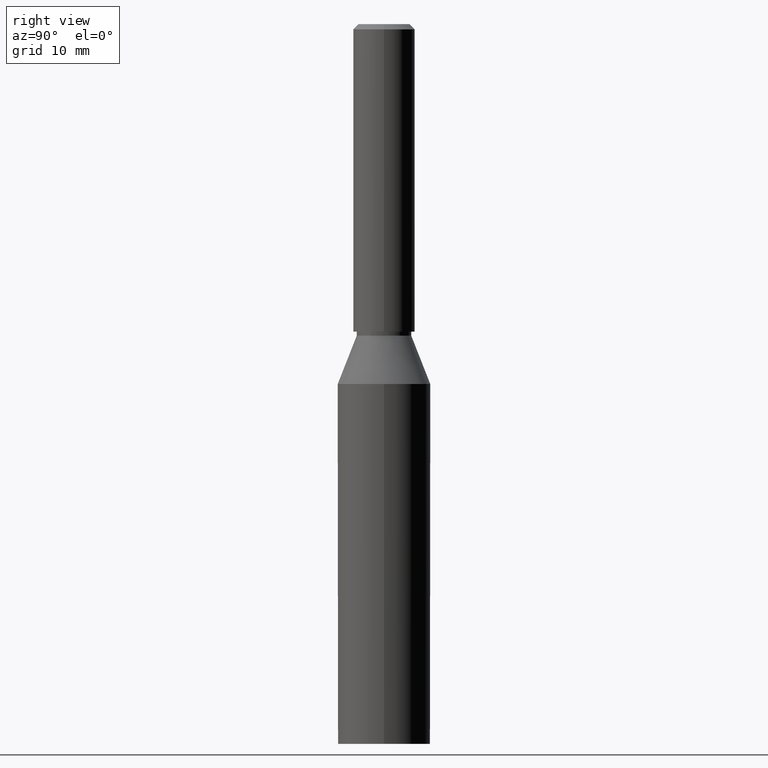
[diagram: clean part render]
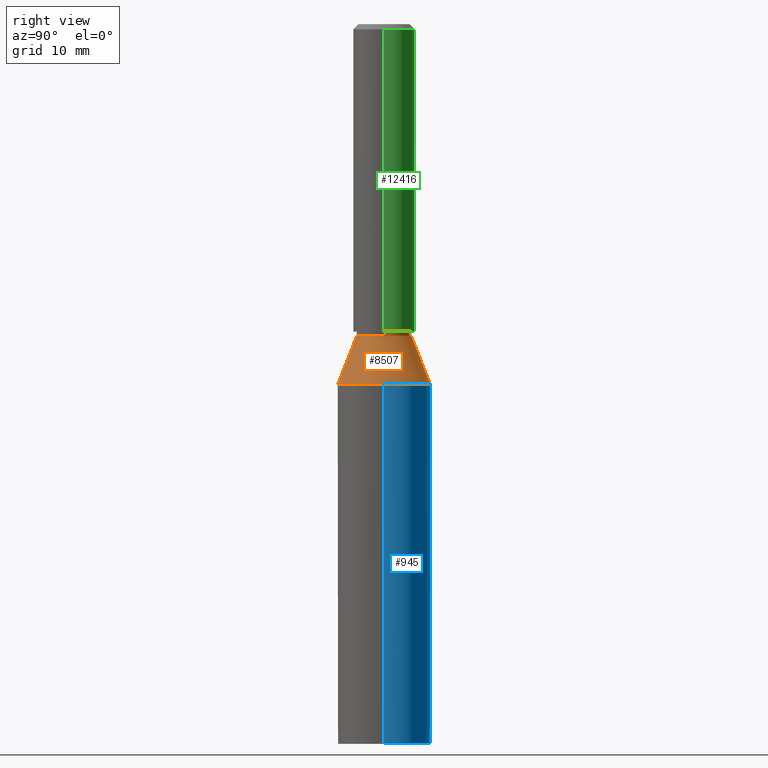
[diagram: same view with three faces highlighted in distinct colors, each labeled with its STEP entity id]
A machine part, right view with three faces highlighted in distinct colors.
Their STEP definitions:

[orange] entity #8507 — the highlighted conical surface has half-angle 21.485 deg.
#260 = CARTESIAN_POINT ( 'NONE',  ( 4.500000000000003600, 5.510910596163094500E-016, 35.00000000000000000 ) ) ;
#266 = CIRCLE ( 'NONE', #11526, 4.500000000000003600 ) ;
#820 = VERTEX_POINT ( 'NONE', #7149 ) ;
#1174 = CARTESIAN_POINT ( 'NONE',  ( 5.510910596163094500E-016, -4.500000000000003600, 35.00000000000000000 ) ) ;
#1350 = CARTESIAN_POINT ( 'NONE',  ( 0.0000000000000000000, -6.887097141624716800E-017, 35.00000000000000000 ) ) ;
#1434 = CARTESIAN_POINT ( 'NONE',  ( 0.0000000000000000000, -7.811935900642893000E-017, 39.70000000000000300 ) ) ;
#1695 = VERTEX_POINT ( 'NONE', #260 ) ;
#2197 = ORIENTED_EDGE ( 'NONE', *, *, #12731, .T. ) ;
#2375 = DIRECTION ( 'NONE',  ( -0.0000000000000000000, 1.967742040464204400E-018, -1.000000000000000000 ) ) ;
#2726 = VECTOR ( 'NONE', #8377, 1000.000000000000000 ) ;
#2846 = ORIENTED_EDGE ( 'NONE', *, *, #8429, .F. ) ;
#3223 = CARTESIAN_POINT ( 'NONE',  ( 0.0000000000000000000, 4.500000000000003600, 35.00000000000000000 ) ) ;
#3724 = CARTESIAN_POINT ( 'NONE',  ( 0.0000000000000000000, -6.887097141624716800E-017, 35.00000000000000000 ) ) ;
#3906 = VERTEX_POINT ( 'NONE', #4678 ) ;
#4350 = DIRECTION ( 'NONE',  ( -0.0000000000000000000, 1.967742040464204400E-018, -1.000000000000000000 ) ) ;
#4417 = ORIENTED_EDGE ( 'NONE', *, *, #6558, .F. ) ;
#4678 = CARTESIAN_POINT ( 'NONE',  ( 3.245314017740492400E-016, -2.650000000000005200, 39.70000000000000300 ) ) ;
#5427 = VERTEX_POINT ( 'NONE', #12892 ) ;
#5673 = EDGE_CURVE ( 'NONE', #3906, #820, #11993, .T. ) ;
#6016 = CARTESIAN_POINT ( 'NONE',  ( 0.0000000000000000000, 2.650000000000005200, 39.70000000000000300 ) ) ;
#6388 = DIRECTION ( 'NONE',  ( 4.485450530567289000E-017, -0.3662648311080578000, -0.9305106520042560900 ) ) ;
#6558 = EDGE_CURVE ( 'NONE', #5427, #1695, #266, .T. ) ;
#7149 = CARTESIAN_POINT ( 'NONE',  ( 5.510910596163094500E-016, -4.500000000000003600, 35.00000000000000000 ) ) ;
#7150 = LINE ( 'NONE', #3223, #2726 ) ;
#7235 = EDGE_LOOP ( 'NONE', ( #2197, #10958, #8607, #4417, #2846 ) ) ;
#7243 = VERTEX_POINT ( 'NONE', #6016 ) ;
#7779 = DIRECTION ( 'NONE',  ( -0.0000000000000000000, 1.967742040464204400E-018, -1.000000000000000000 ) ) ;
#7947 = CARTESIAN_POINT ( 'NONE',  ( 0.0000000000000000000, -6.887097141624716800E-017, 35.00000000000000000 ) ) ;
#8265 = AXIS2_PLACEMENT_3D ( 'NONE', #1350, #2375, #9420 ) ;
#8377 = DIRECTION ( 'NONE',  ( 0.0000000000000000000, 0.3662648311080578000, -0.9305106520042560900 ) ) ;
#8390 = CONICAL_SURFACE ( 'NONE', #8265, 4.500000000000003600, 0.3749917271333682000 ) ;
#8403 = FACE_OUTER_BOUND ( 'NONE', #7235, .T. ) ;
#8415 = DIRECTION ( 'NONE',  ( 0.0000000000000000000, 1.000000000000000000, 0.0000000000000000000 ) ) ;
#8429 = EDGE_CURVE ( 'NONE', #7243, #5427, #7150, .T. ) ;
#8507 = ADVANCED_FACE ( 'NONE', ( #8403 ), #8390, .T. ) ;
#8607 = ORIENTED_EDGE ( 'NONE', *, *, #12381, .F. ) ;
#8790 = DIRECTION ( 'NONE',  ( 0.0000000000000000000, 1.000000000000000000, 0.0000000000000000000 ) ) ;
#8945 = AXIS2_PLACEMENT_3D ( 'NONE', #1434, #4350, #8415 ) ;
#9019 = AXIS2_PLACEMENT_3D ( 'NONE', #7947, #10977, #9914 ) ;
#9049 = CIRCLE ( 'NONE', #9019, 4.500000000000003600 ) ;
#9420 = DIRECTION ( 'NONE',  ( 0.0000000000000000000, 1.000000000000000000, 0.0000000000000000000 ) ) ;
#9914 = DIRECTION ( 'NONE',  ( 0.0000000000000000000, 1.000000000000000000, 0.0000000000000000000 ) ) ;
#10958 = ORIENTED_EDGE ( 'NONE', *, *, #5673, .T. ) ;
#10977 = DIRECTION ( 'NONE',  ( -0.0000000000000000000, 1.967742040464204400E-018, -1.000000000000000000 ) ) ;
#11021 = VECTOR ( 'NONE', #6388, 1000.000000000000000 ) ;
#11526 = AXIS2_PLACEMENT_3D ( 'NONE', #3724, #7779, #8790 ) ;
#11993 = LINE ( 'NONE', #1174, #11021 ) ;
#12374 = CIRCLE ( 'NONE', #8945, 2.650000000000005200 ) ;
#12381 = EDGE_CURVE ( 'NONE', #1695, #820, #9049, .T. ) ;
#12731 = EDGE_CURVE ( 'NONE', #7243, #3906, #12374, .T. ) ;
#12892 = CARTESIAN_POINT ( 'NONE',  ( 0.0000000000000000000, 4.500000000000003600, 35.00000000000000000 ) ) ;

[blue] entity #945 — the highlighted cylindrical surface (partial cylindrical patch) has radius 4.5 mm, axis along (-0, -0, -1).
#177 = DIRECTION ( 'NONE',  ( 0.0000000000000000000, 0.0000000000000000000, 1.000000000000000000 ) ) ;
#211 = EDGE_CURVE ( 'NONE', #7531, #11184, #9661, .T. ) ;
#259 = CARTESIAN_POINT ( 'NONE',  ( 0.0000000000000000000, 0.0000000000000000000, 0.0000000000000000000 ) ) ;
#260 = CARTESIAN_POINT ( 'NONE',  ( 4.500000000000003600, 5.510910596163094500E-016, 35.00000000000000000 ) ) ;
#266 = CIRCLE ( 'NONE', #11526, 4.500000000000003600 ) ;
#736 = DIRECTION ( 'NONE',  ( -0.0000000000000000000, 1.967742040464204400E-018, -1.000000000000000000 ) ) ;
#945 = ADVANCED_FACE ( 'NONE', ( #8081 ), #5879, .T. ) ;
#1033 = ORIENTED_EDGE ( 'NONE', *, *, #3970, .T. ) ;
#1042 = CARTESIAN_POINT ( 'NONE',  ( -4.500000000000000000, 0.0000000000000000000, 40.00000000000000000 ) ) ;
#1355 = CARTESIAN_POINT ( 'NONE',  ( 4.500000000000000000, 5.510910596163088600E-016, 40.00000000000000000 ) ) ;
#1695 = VERTEX_POINT ( 'NONE', #260 ) ;
#2212 = DIRECTION ( 'NONE',  ( -0.0000000000000000000, -0.0000000000000000000, -1.000000000000000000 ) ) ;
#2305 = EDGE_LOOP ( 'NONE', ( #6941, #10497, #1033, #3179, #8171 ) ) ;
#3179 = ORIENTED_EDGE ( 'NONE', *, *, #211, .T. ) ;
#3430 = DIRECTION ( 'NONE',  ( -0.0000000000000000000, -0.0000000000000000000, -1.000000000000000000 ) ) ;
#3680 = CARTESIAN_POINT ( 'NONE',  ( 4.500000000000000000, 5.510910596163088600E-016, 0.0000000000000000000 ) ) ;
#3724 = CARTESIAN_POINT ( 'NONE',  ( 0.0000000000000000000, -6.887097141624716800E-017, 35.00000000000000000 ) ) ;
#3970 = EDGE_CURVE ( 'NONE', #1695, #7531, #8203, .T. ) ;
#4025 = DIRECTION ( 'NONE',  ( -0.0000000000000000000, -0.0000000000000000000, -1.000000000000000000 ) ) ;
#5316 = CARTESIAN_POINT ( 'NONE',  ( -4.500000000000000000, 0.0000000000000000000, 0.0000000000000000000 ) ) ;
#5427 = VERTEX_POINT ( 'NONE', #12892 ) ;
#5464 = AXIS2_PLACEMENT_3D ( 'NONE', #5780, #736, #7904 ) ;
#5510 = VECTOR ( 'NONE', #2212, 1000.000000000000000 ) ;
#5780 = CARTESIAN_POINT ( 'NONE',  ( 0.0000000000000000000, -6.887097141624716800E-017, 35.00000000000000000 ) ) ;
#5879 = CYLINDRICAL_SURFACE ( 'NONE', #8218, 4.500000000000000000 ) ;
#6356 = VECTOR ( 'NONE', #4025, 1000.000000000000000 ) ;
#6557 = DIRECTION ( 'NONE',  ( -1.000000000000000000, 0.0000000000000000000, 0.0000000000000000000 ) ) ;
#6558 = EDGE_CURVE ( 'NONE', #5427, #1695, #266, .T. ) ;
#6941 = ORIENTED_EDGE ( 'NONE', *, *, #11753, .T. ) ;
#7529 = CARTESIAN_POINT ( 'NONE',  ( 0.0000000000000000000, 0.0000000000000000000, 40.00000000000000000 ) ) ;
#7531 = VERTEX_POINT ( 'NONE', #3680 ) ;
#7700 = AXIS2_PLACEMENT_3D ( 'NONE', #259, #177, #10316 ) ;
#7779 = DIRECTION ( 'NONE',  ( -0.0000000000000000000, 1.967742040464204400E-018, -1.000000000000000000 ) ) ;
#7904 = DIRECTION ( 'NONE',  ( 0.0000000000000000000, 1.000000000000000000, 0.0000000000000000000 ) ) ;
#8081 = FACE_OUTER_BOUND ( 'NONE', #2305, .T. ) ;
#8171 = ORIENTED_EDGE ( 'NONE', *, *, #8252, .F. ) ;
#8203 = LINE ( 'NONE', #1355, #5510 ) ;
#8218 = AXIS2_PLACEMENT_3D ( 'NONE', #7529, #3430, #6557 ) ;
#8252 = EDGE_CURVE ( 'NONE', #13061, #11184, #9033, .T. ) ;
#8603 = CIRCLE ( 'NONE', #5464, 4.500000000000003600 ) ;
#8790 = DIRECTION ( 'NONE',  ( 0.0000000000000000000, 1.000000000000000000, 0.0000000000000000000 ) ) ;
#9033 = LINE ( 'NONE', #1042, #6356 ) ;
#9661 = CIRCLE ( 'NONE', #7700, 4.500000000000000000 ) ;
#9665 = CARTESIAN_POINT ( 'NONE',  ( -4.500000000000003600, 6.018531076210112000E-032, 35.00000000000000000 ) ) ;
#10316 = DIRECTION ( 'NONE',  ( 1.000000000000000000, 0.0000000000000000000, 0.0000000000000000000 ) ) ;
#10497 = ORIENTED_EDGE ( 'NONE', *, *, #6558, .T. ) ;
#11184 = VERTEX_POINT ( 'NONE', #5316 ) ;
#11526 = AXIS2_PLACEMENT_3D ( 'NONE', #3724, #7779, #8790 ) ;
#11753 = EDGE_CURVE ( 'NONE', #13061, #5427, #8603, .T. ) ;
#12892 = CARTESIAN_POINT ( 'NONE',  ( 0.0000000000000000000, 4.500000000000003600, 35.00000000000000000 ) ) ;
#13061 = VERTEX_POINT ( 'NONE', #9665 ) ;

[green] entity #12416 — the highlighted cylindrical surface (edge-blend (fillet) strip) has radius 3 mm, axis along (-0, -0, -1).
#56 = CARTESIAN_POINT ( 'NONE',  ( 3.000000000000000400, 3.673940397442060400E-016, 40.10000000000000100 ) ) ;
#431 = CIRCLE ( 'NONE', #4338, 3.000000000000000400 ) ;
#440 = LINE ( 'NONE', #6585, #1401 ) ;
#519 = DIRECTION ( 'NONE',  ( -0.0000000000000000000, -0.0000000000000000000, -1.000000000000000000 ) ) ;
#665 = CYLINDRICAL_SURFACE ( 'NONE', #11408, 3.000000000000000400 ) ;
#1007 = CARTESIAN_POINT ( 'NONE',  ( 0.0000000000000000000, 0.0000000000000000000, 69.49999999999998600 ) ) ;
#1401 = VECTOR ( 'NONE', #519, 1000.000000000000000 ) ;
#1484 = EDGE_CURVE ( 'NONE', #12406, #4549, #9323, .T. ) ;
#2789 = VECTOR ( 'NONE', #4858, 1000.000000000000000 ) ;
#2795 = DIRECTION ( 'NONE',  ( -0.0000000000000000000, 1.967742040464204400E-018, -1.000000000000000000 ) ) ;
#2919 = DIRECTION ( 'NONE',  ( -1.000000000000000000, 0.0000000000000000000, 0.0000000000000000000 ) ) ;
#2993 = ORIENTED_EDGE ( 'NONE', *, *, #1484, .T. ) ;
#3852 = CARTESIAN_POINT ( 'NONE',  ( 0.0000000000000000000, 0.0000000000000000000, 40.10000000000000100 ) ) ;
#3940 = EDGE_CURVE ( 'NONE', #12406, #9047, #440, .T. ) ;
#4311 = ORIENTED_EDGE ( 'NONE', *, *, #6716, .T. ) ;
#4338 = AXIS2_PLACEMENT_3D ( 'NONE', #3852, #2795, #12946 ) ;
#4549 = VERTEX_POINT ( 'NONE', #7584 ) ;
#4858 = DIRECTION ( 'NONE',  ( -0.0000000000000000000, -0.0000000000000000000, -1.000000000000000000 ) ) ;
#4895 = CARTESIAN_POINT ( 'NONE',  ( -3.000000000000000400, 0.0000000000000000000, 69.49999999999998600 ) ) ;
#4978 = EDGE_CURVE ( 'NONE', #9047, #10108, #431, .T. ) ;
#4981 = CARTESIAN_POINT ( 'NONE',  ( 0.0000000000000000000, 0.0000000000000000000, 70.00000000000000000 ) ) ;
#6585 = CARTESIAN_POINT ( 'NONE',  ( -3.000000000000000400, 0.0000000000000000000, 70.00000000000000000 ) ) ;
#6716 = EDGE_CURVE ( 'NONE', #4549, #10108, #8153, .T. ) ;
#7058 = DIRECTION ( 'NONE',  ( -0.0000000000000000000, -0.0000000000000000000, -1.000000000000000000 ) ) ;
#7584 = CARTESIAN_POINT ( 'NONE',  ( 3.000000000000000400, 3.673940397442060400E-016, 69.49999999999998600 ) ) ;
#7958 = DIRECTION ( 'NONE',  ( 0.0000000000000000000, 0.0000000000000000000, -1.000000000000000000 ) ) ;
#8153 = LINE ( 'NONE', #12106, #2789 ) ;
#9047 = VERTEX_POINT ( 'NONE', #10740 ) ;
#9323 = CIRCLE ( 'NONE', #12965, 3.000000000000000400 ) ;
#10108 = VERTEX_POINT ( 'NONE', #56 ) ;
#10615 = FACE_OUTER_BOUND ( 'NONE', #11442, .T. ) ;
#10740 = CARTESIAN_POINT ( 'NONE',  ( -3.000000000000000400, 0.0000000000000000000, 40.10000000000000100 ) ) ;
#11090 = ORIENTED_EDGE ( 'NONE', *, *, #4978, .F. ) ;
#11408 = AXIS2_PLACEMENT_3D ( 'NONE', #4981, #7058, #2919 ) ;
#11442 = EDGE_LOOP ( 'NONE', ( #2993, #4311, #11090, #12384 ) ) ;
#12026 = DIRECTION ( 'NONE',  ( 1.000000000000000000, 0.0000000000000000000, 0.0000000000000000000 ) ) ;
#12106 = CARTESIAN_POINT ( 'NONE',  ( 3.000000000000000400, 3.673940397442060400E-016, 70.00000000000000000 ) ) ;
#12384 = ORIENTED_EDGE ( 'NONE', *, *, #3940, .F. ) ;
#12406 = VERTEX_POINT ( 'NONE', #4895 ) ;
#12416 = ADVANCED_FACE ( 'NONE', ( #10615 ), #665, .T. ) ;
#12946 = DIRECTION ( 'NONE',  ( 0.0000000000000000000, 1.000000000000000000, 0.0000000000000000000 ) ) ;
#12965 = AXIS2_PLACEMENT_3D ( 'NONE', #1007, #7958, #12026 ) ;